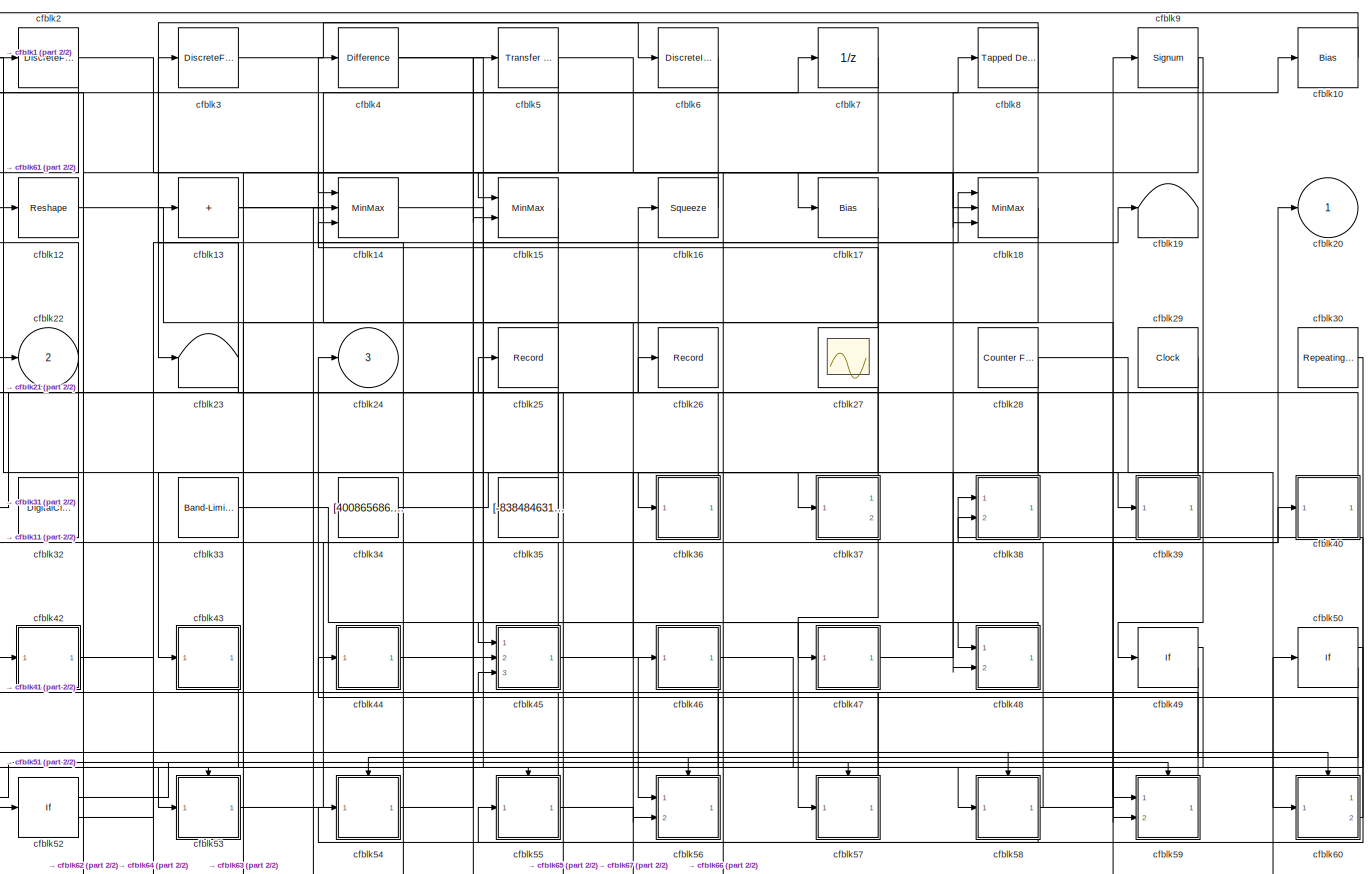
[diagram: root canvas - part 1/2, most of the canvas]
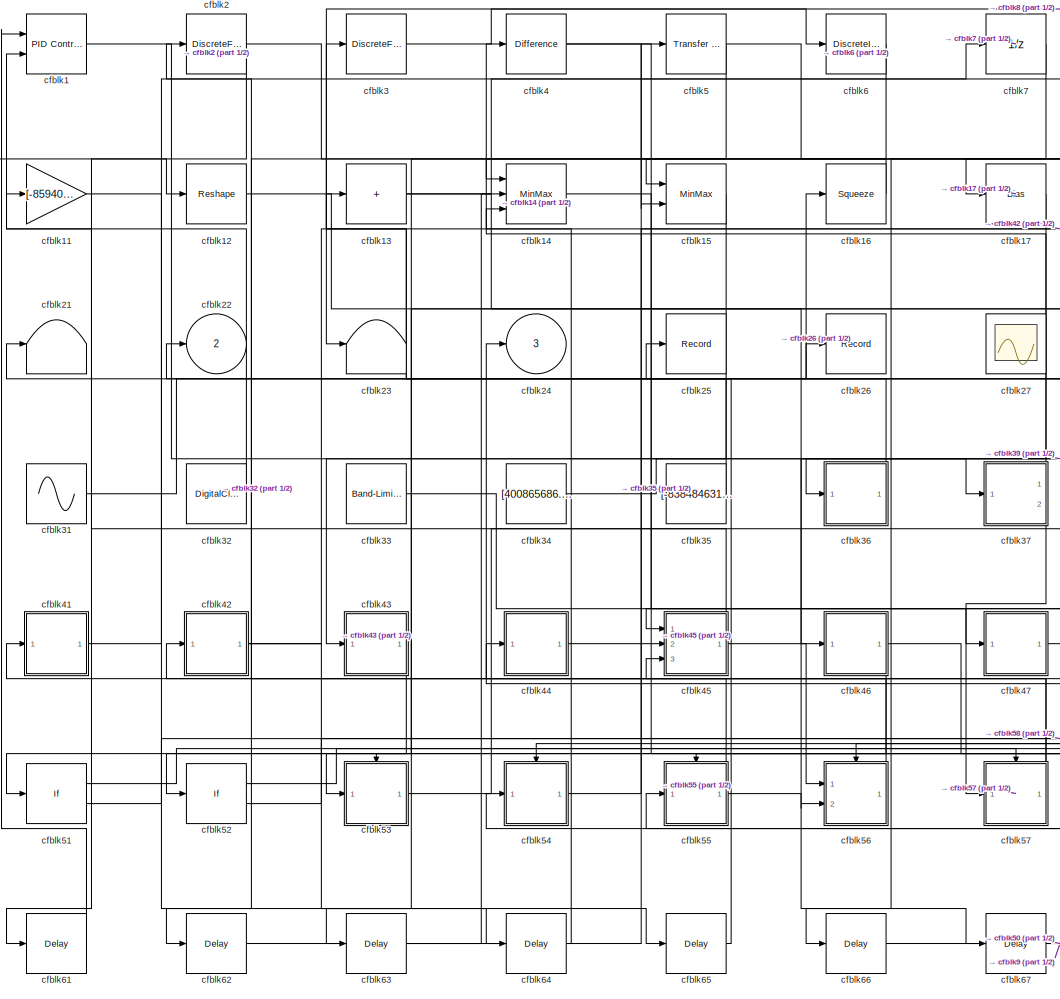
[diagram: root canvas - part 2/2, center side, full height]
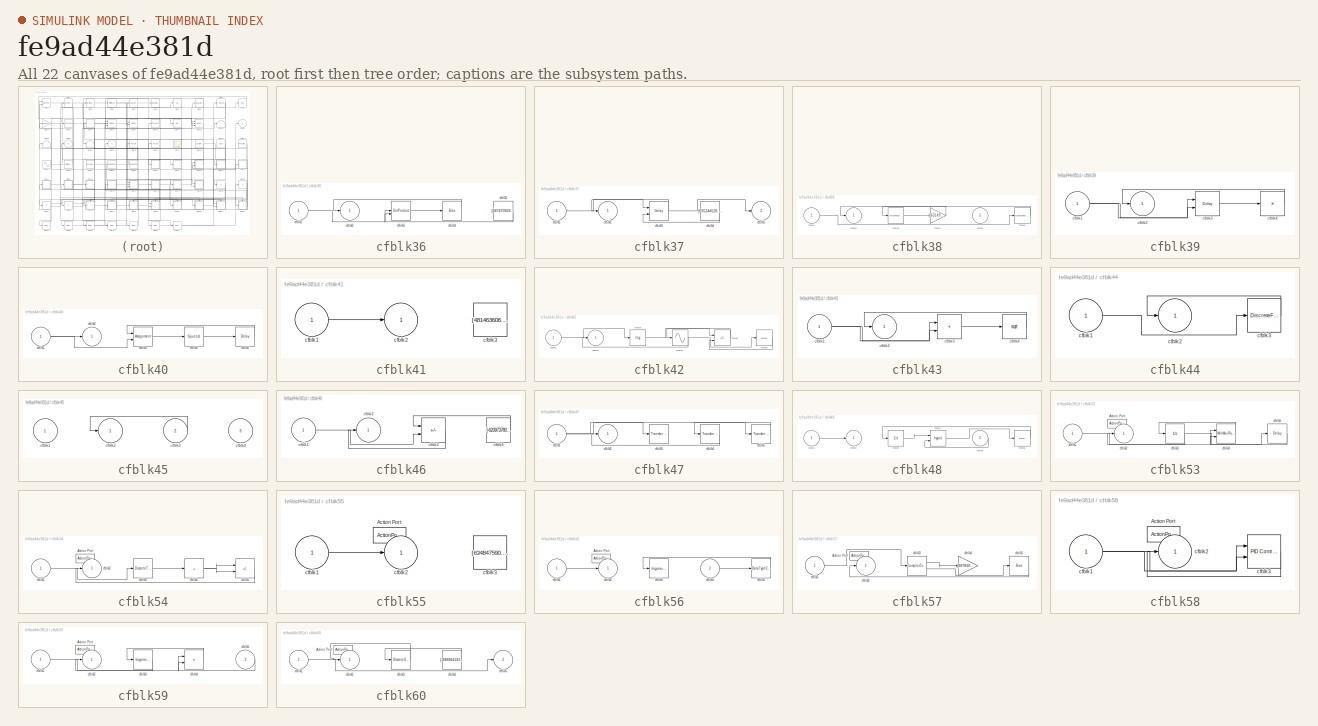
[diagram: thumbnail index - all 22 canvases of the model, root first then tree order]
MODEL slx_fe9ad44e381d
KIND model
CONFIG AbsTol = auto
CONFIG EnableMultiTasking = off
CONFIG FixedStep = auto
CONFIG MaxStep = auto
CONFIG MinStep = auto
CONFIG RelTol = 1e-3
CONFIG SampleTimeConstraint = Unconstrained
CONFIG SolverName = VariableStepAuto
CONFIG StartTime = 0.0
CONFIG StopTime = 10.0
BLOCK [Reference] cfblk1  REF=slpidlib/PID Controller (2DOF)
  Ports = [2, 1]
  SourceBlock = slpidlib/PID Controller (2DOF)
  SourceProductBaseCode = SL
  SourceType = PID 2dof
BLOCK [Bias] cfblk10
  Bias = [28283981.535764]
  SaturateOnIntegerOverflow = off
BLOCK [Gain] cfblk11
  Gain = [-859401278.077181]
BLOCK [Reshape] cfblk12
  Ports = [1, 1]
BLOCK [Sum] cfblk13
  IconShape = rectangular
  Inputs = +
  Ports = [1, 1]
BLOCK [MinMax] cfblk14
  Function = max
  Inputs = 3
  Ports = [3, 1]
BLOCK [MinMax] cfblk15
  Inputs = 2
  Ports = [2, 1]
BLOCK [Squeeze] cfblk16
BLOCK [Bias] cfblk17
  Bias = [55228400.673783]
  SaturateOnIntegerOverflow = off
BLOCK [MinMax] cfblk18
  Inputs = 3
  Ports = [3, 1]
BLOCK [Terminator] cfblk19
BLOCK [DiscreteFilter] cfblk2
  InputPortMap = u0
  Ports = [1, 1]
  SampleTime = 1
BLOCK [Outport] cfblk20
BLOCK [Terminator] cfblk21
BLOCK [Outport] cfblk22
  Port = 2
BLOCK [Terminator] cfblk23
BLOCK [Outport] cfblk24
  Port = 3
BLOCK [Record] cfblk25
  FileSettingsInternal = {"entries":[{"content":{"excelSettings":{"content":{},"type":"Streamout.ExcelSettings"}},"type":"Streamout.FileSettingStorage","uuid":"5d6700eb-b7dc-4e89-8cfd-a7cfabde85fd"}],"packageUris":["http://schema.mathworks.com/mf0/streamout_blocks/R2020a"],"version":"1.0"}
  Ports = [1]
  SignalsInternal = {"entries":[{"content":{"signals":[{"content":{"blockPath":["sampleModel168/cfblk25"],"channel":[],"dimensions":[1],"domain":"sampleModel168/cfblk25","lineColor":"#ff13a6","plots":[1],"port":1,"sid":[""],"signalID":6325,"signalName":"cfblk57"},"type":"RecordBlkView.Signal","uuid":"5bee3f64-e3fd-44b3-9e31-3812ad4f074b"}]},"type":"RecordBlkView.InputSignals","uuid":"565ec13a-f817-448c-bf93-5228326c9...<+97ch>
  VisualizationBindings = {"sparklinesplugin":{"info":[{"bindingParametersList":[],"subplotID":1}]}}
BLOCK [Record] cfblk26
  FileSettingsInternal = {"entries":[{"content":{"excelSettings":{"content":{},"type":"Streamout.ExcelSettings"}},"type":"Streamout.FileSettingStorage","uuid":"034f7d33-27da-4be1-a58b-e2f12ee0a9b7"}],"packageUris":["http://schema.mathworks.com/mf0/streamout_blocks/R2020a"],"version":"1.0"}
  Ports = [1]
  SignalsInternal = {"entries":[{"content":{"signals":[{"content":{"blockPath":["sampleModel168/cfblk26"],"channel":[],"dimensions":[1],"domain":"sampleModel168/cfblk26","lineColor":"#fe330a","plots":[1],"port":1,"sid":[""],"signalID":6329,"signalName":"cfblk31"},"type":"RecordBlkView.Signal","uuid":"832ba97a-a374-4f23-ac50-8a6ca30bdff1"}]},"type":"RecordBlkView.InputSignals","uuid":"b795735d-caf7-44f9-b6f9-1499413fe...<+97ch>
  VisualizationBindings = {"sparklinesplugin":{"info":[{"bindingParametersList":[],"subplotID":1}]}}
BLOCK [Scope] cfblk27
  Floating = on
  NumInputPorts = 1
  Ports = []
BLOCK [Reference] cfblk28  REF=simulink/Sources/Counter
Free-Running
  Ports = [0, 1]
  SourceBlock = simulink/Sources/Counter\nFree-Running
  SourceProductBaseCode = SL
  SourceType = Counter Free-Running
BLOCK [Clock] cfblk29
BLOCK [DiscreteFir] cfblk3
  InputPortMap = u0
  OutputPortMap = o0
  Ports = [1, 1]
  SampleTime = 1
BLOCK [Reference] cfblk30  REF=simulink/Sources/Repeating
Sequence
Interpolated
  Ports = [0, 1]
  SourceBlock = simulink/Sources/Repeating\nSequence\nInterpolated
  SourceProductBaseCode = SL
  SourceType = Repeating Sequence Interpolated
BLOCK [Sin] cfblk31
  Amplitude = [-188151696.405672]
  Bias = [-383980109.260124]
  Ports = [0, 1]
  SampleTime = 0
BLOCK [DigitalClock] cfblk32
BLOCK [Reference] cfblk33  REF=simulink/Sources/Band-Limited
White Noise
  Ports = [0, 1]
  SourceBlock = simulink/Sources/Band-Limited\nWhite Noise
  SourceProductBaseCode = SL
  SourceType = Band-Limited White Noise.
BLOCK [Constant] cfblk34
  SampleTime = 1
  Value = [400865686.655921]
BLOCK [Constant] cfblk35
  SampleTime = 1
  Value = [-838484631.348236]
BLOCK [SubSystem] cfblk36
  Ports = [1, 1]
  RequestExecContextInheritance = off
BLOCK [Inport] cfblk36/cfblk1
BLOCK [Outport] cfblk36/cfblk2
BLOCK [DotProduct] cfblk36/cfblk3
  OutDataTypeStr = Inherit: Inherit via internal rule
BLOCK [Bias] cfblk36/cfblk4
  Bias = [594957066.753553]
  SaturateOnIntegerOverflow = off
BLOCK [Constant] cfblk36/cfblk5
  SampleTime = 1
  Value = [587470929.840777]
BLOCK [SubSystem] cfblk37
  Ports = [1, 2]
  RequestExecContextInheritance = off
BLOCK [Inport] cfblk37/cfblk1
BLOCK [Outport] cfblk37/cfblk2
BLOCK [Delay] cfblk37/cfblk3
  DelayLengthSource = Input port
  InputPortMap = u0,p1
  Ports = [2, 1]
  SampleTime = 1
BLOCK [Constant] cfblk37/cfblk4
  SampleTime = 1
  Value = [635244528.614204]
BLOCK [Outport] cfblk37/cfblk5
  Port = 2
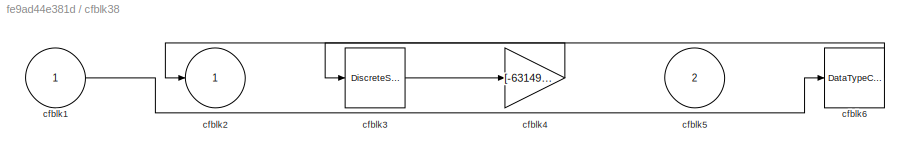
BLOCK [SubSystem] cfblk38
  Ports = [2, 1]
  RequestExecContextInheritance = off
BLOCK [Inport] cfblk38/cfblk1
BLOCK [Outport] cfblk38/cfblk2
BLOCK [DiscreteStateSpace] cfblk38/cfblk3
BLOCK [Gain] cfblk38/cfblk4
  Gain = [-631490085.048329]
BLOCK [Inport] cfblk38/cfblk5
  Port = 2
BLOCK [DataTypeConversion] cfblk38/cfblk6
  RndMeth = Floor
  SaturateOnIntegerOverflow = off
BLOCK [SubSystem] cfblk39
  Ports = [1, 1]
  RequestExecContextInheritance = off
BLOCK [Inport] cfblk39/cfblk1
BLOCK [Outport] cfblk39/cfblk2
BLOCK [Delay] cfblk39/cfblk3
  InputPortMap = u0,e6
  Ports = [2, 1]
  SampleTime = 1
  ShowEnablePort = on
BLOCK [Product] cfblk39/cfblk4
  Inputs = *
  Ports = [1, 1]
BLOCK [Reference] cfblk4  REF=simulink/Discrete/Difference
  Ports = [1, 1]
  SourceBlock = simulink/Discrete/Difference
  SourceProductBaseCode = SL
  SourceType = Difference
BLOCK [SubSystem] cfblk40
  Ports = [1, 1]
  RequestExecContextInheritance = off
BLOCK [Inport] cfblk40/cfblk1
BLOCK [Outport] cfblk40/cfblk2
BLOCK [Assignment] cfblk40/cfblk3
  DiagnosticForDimensions = Warning
  IndexOptions = Index vector (dialog)
  Indices = 1
  OutputSizes = 1
  Ports = [2, 1]
BLOCK [Squeeze] cfblk40/cfblk4
BLOCK [Delay] cfblk40/cfblk5
  InputPortMap = u0
  Ports = [1, 1]
  SampleTime = 1
BLOCK [SubSystem] cfblk41
  Ports = [1, 1]
  RequestExecContextInheritance = off
BLOCK [Inport] cfblk41/cfblk1
BLOCK [Outport] cfblk41/cfblk2
BLOCK [Constant] cfblk41/cfblk3
  SampleTime = 1
  Value = [481463606.367237]
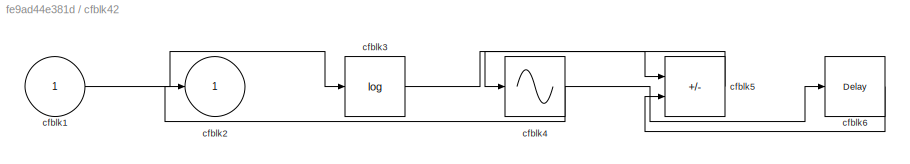
BLOCK [SubSystem] cfblk42
  Ports = [1, 1]
  RequestExecContextInheritance = off
BLOCK [Inport] cfblk42/cfblk1
BLOCK [Outport] cfblk42/cfblk2
BLOCK [Math] cfblk42/cfblk3
  Operator = log
  Ports = [1, 1]
BLOCK [Sin] cfblk42/cfblk4
  Ports = [1, 1]
  SampleTime = 0
  TimeSource = Use external signal
BLOCK [Sum] cfblk42/cfblk5
  IconShape = rectangular
  Inputs = +-
  Ports = [2, 1]
BLOCK [Delay] cfblk42/cfblk6
  InputPortMap = u0
  Ports = [1, 1]
  SampleTime = 1
BLOCK [SubSystem] cfblk43
  Ports = [1, 1]
  RequestExecContextInheritance = off
BLOCK [Inport] cfblk43/cfblk1
BLOCK [Outport] cfblk43/cfblk2
BLOCK [Sum] cfblk43/cfblk3
  IconShape = rectangular
  Ports = [2, 1]
BLOCK [Sqrt] cfblk43/cfblk4
BLOCK [SubSystem] cfblk44
  Ports = [1, 1]
  RequestExecContextInheritance = off
BLOCK [Inport] cfblk44/cfblk1
BLOCK [Outport] cfblk44/cfblk2
BLOCK [DiscreteFilter] cfblk44/cfblk3
  InputPortMap = u0
  Ports = [1, 1]
  SampleTime = 1
BLOCK [SubSystem] cfblk45
  Ports = [3, 1]
  RequestExecContextInheritance = off
BLOCK [Inport] cfblk45/cfblk1
BLOCK [Outport] cfblk45/cfblk2
BLOCK [Inport] cfblk45/cfblk3
  Port = 2
BLOCK [Inport] cfblk45/cfblk4
  Port = 3
BLOCK [SubSystem] cfblk46
  Ports = [1, 1]
  RequestExecContextInheritance = off
BLOCK [Inport] cfblk46/cfblk1
BLOCK [Outport] cfblk46/cfblk2
BLOCK [Sum] cfblk46/cfblk3
  IconShape = rectangular
  Inputs = +-
  Ports = [2, 1]
BLOCK [Constant] cfblk46/cfblk4
  SampleTime = 1
  Value = [-620973780.645703]
BLOCK [SubSystem] cfblk47
  Ports = [1, 1]
  RequestExecContextInheritance = off
BLOCK [Inport] cfblk47/cfblk1
BLOCK [Outport] cfblk47/cfblk2
BLOCK [Reference] cfblk47/cfblk3  REF=simulink/Discrete/Transfer Fcn
Real Zero
  Ports = [1, 1]
  SourceBlock = simulink/Discrete/Transfer Fcn\nReal Zero
  SourceProductBaseCode = SL
  SourceType = Transfer Fcn Real Zero
BLOCK [Reference] cfblk47/cfblk4  REF=simulink/Discrete/Transfer Fcn
Lead or Lag
  Ports = [1, 1]
  SourceBlock = simulink/Discrete/Transfer Fcn\nLead or Lag
  SourceProductBaseCode = SL
  SourceType = Lead or Lag Compensator
BLOCK [Reference] cfblk47/cfblk5  REF=simulink/Discrete/Transfer Fcn
First Order
  Ports = [1, 1]
  SourceBlock = simulink/Discrete/Transfer Fcn\nFirst Order
  SourceProductBaseCode = SL
  SourceType = First Order Transfer Fcn
BLOCK [SubSystem] cfblk48
  Ports = [2, 1]
  RequestExecContextInheritance = off
BLOCK [Inport] cfblk48/cfblk1
BLOCK [Outport] cfblk48/cfblk2
BLOCK [UnitDelay] cfblk48/cfblk3
  HasFrameUpgradeWarning = on
BLOCK [Math] cfblk48/cfblk4
  Operator = hypot
  Ports = [2, 1]
BLOCK [Inport] cfblk48/cfblk5
  Port = 2
BLOCK [Delay] cfblk48/cfblk6
  InputPortMap = u0
  Ports = [1, 1]
  SampleTime = 1
BLOCK [If] cfblk49
  IfExpression = u1 >= 0
  Ports = [1, 2]
  SampleTime = 1
BLOCK [Reference] cfblk5  REF=simulink/Discrete/Transfer Fcn
First Order
  Ports = [1, 1]
  SourceBlock = simulink/Discrete/Transfer Fcn\nFirst Order
  SourceProductBaseCode = SL
  SourceType = First Order Transfer Fcn
BLOCK [If] cfblk50
  IfExpression = u1 >= 0
  Ports = [1, 2]
  SampleTime = 1
BLOCK [If] cfblk51
  IfExpression = u1 >= 0
  Ports = [1, 2]
  SampleTime = 1
BLOCK [If] cfblk52
  IfExpression = u1 >= 0
  Ports = [1, 2]
  SampleTime = 1
BLOCK [SubSystem] cfblk53
  Ports = [1, 1, 0, 0, 0, 0, 0, 1]
  RequestExecContextInheritance = off
  TreatAsAtomicUnit = on
BLOCK [ActionPort] cfblk53/Action Port
  ActionPortLabel = if(u1 >= 0)
BLOCK [Inport] cfblk53/cfblk1
BLOCK [Outport] cfblk53/cfblk2
BLOCK [UnitDelay] cfblk53/cfblk3
  HasFrameUpgradeWarning = on
  SampleTime = -1
BLOCK [Reference] cfblk53/cfblk4  REF=simulink/Math
Operations/MinMax
Running
Resettable
  Ports = [2, 1]
  SourceBlock = simulink/Math\nOperations/MinMax\nRunning\nResettable
  SourceProductBaseCode = SL
  SourceType = MinMax Running Resettable
BLOCK [Delay] cfblk53/cfblk5
  InputPortMap = u0
  Ports = [1, 1]
BLOCK [SubSystem] cfblk54
  Ports = [1, 1, 0, 0, 0, 0, 0, 1]
  RequestExecContextInheritance = off
  TreatAsAtomicUnit = on
BLOCK [ActionPort] cfblk54/Action Port
  ActionPortLabel = else
BLOCK [Inport] cfblk54/cfblk1
BLOCK [Outport] cfblk54/cfblk2
BLOCK [DiscreteTransferFcn] cfblk54/cfblk3
  InputPortMap = u0
  Ports = [1, 1]
BLOCK [Sum] cfblk54/cfblk4
  IconShape = rectangular
  Inputs = +
  Ports = [1, 1]
BLOCK [Sum] cfblk54/cfblk5
  IconShape = rectangular
  Inputs = +-
  Ports = [2, 1]
BLOCK [SubSystem] cfblk55
  Ports = [1, 1, 0, 0, 0, 0, 0, 1]
  RequestExecContextInheritance = off
  TreatAsAtomicUnit = on
BLOCK [ActionPort] cfblk55/Action Port
  ActionPortLabel = if(u1 >= 0)
BLOCK [Inport] cfblk55/cfblk1
BLOCK [Outport] cfblk55/cfblk2
BLOCK [Constant] cfblk55/cfblk3
  SampleTime = 1
  Value = [634847590.051330]
BLOCK [SubSystem] cfblk56
  Ports = [2, 1, 0, 0, 0, 0, 0, 1]
  RequestExecContextInheritance = off
  TreatAsAtomicUnit = on
BLOCK [ActionPort] cfblk56/Action Port
  ActionPortLabel = else
BLOCK [Inport] cfblk56/cfblk1
BLOCK [Outport] cfblk56/cfblk2
BLOCK [Trigonometry] cfblk56/cfblk3
  Ports = [1, 1]
BLOCK [Inport] cfblk56/cfblk4
  Port = 2
BLOCK [DataTypeConversion] cfblk56/cfblk5
  RndMeth = Floor
  SaturateOnIntegerOverflow = off
BLOCK [SubSystem] cfblk57
  Ports = [1, 1, 0, 0, 0, 0, 0, 1]
  RequestExecContextInheritance = off
  TreatAsAtomicUnit = on
BLOCK [ActionPort] cfblk57/Action Port
  ActionPortLabel = if(u1 >= 0)
BLOCK [Inport] cfblk57/cfblk1
BLOCK [Outport] cfblk57/cfblk2
BLOCK [ComplexToMagnitudeAngle] cfblk57/cfblk3
  Ports = [1, 2]
BLOCK [Gain] cfblk57/cfblk4
  Gain = [997830737.769747]
BLOCK [Bias] cfblk57/cfblk5
  Bias = [213280168.203241]
  SaturateOnIntegerOverflow = off
BLOCK [SubSystem] cfblk58
  Ports = [1, 1, 0, 0, 0, 0, 0, 1]
  RequestExecContextInheritance = off
  TreatAsAtomicUnit = on
BLOCK [ActionPort] cfblk58/Action Port
  ActionPortLabel = else
BLOCK [Inport] cfblk58/cfblk1
BLOCK [Outport] cfblk58/cfblk2
BLOCK [Reference] cfblk58/cfblk3  REF=slpidlib/PID Controller (2DOF)
  Ports = [2, 1]
  SourceBlock = slpidlib/PID Controller (2DOF)
  SourceProductBaseCode = SL
  SourceType = PID 2dof
BLOCK [SubSystem] cfblk59
  Ports = [2, 1, 0, 0, 0, 0, 0, 1]
  RequestExecContextInheritance = off
  TreatAsAtomicUnit = on
BLOCK [ActionPort] cfblk59/Action Port
  ActionPortLabel = if(u1 >= 0)
BLOCK [Inport] cfblk59/cfblk1
BLOCK [Outport] cfblk59/cfblk2
BLOCK [Trigonometry] cfblk59/cfblk3
  Ports = [1, 1]
BLOCK [Product] cfblk59/cfblk4
  Ports = [2, 1]
BLOCK [Inport] cfblk59/cfblk5
  Port = 2
BLOCK [DiscreteIntegrator] cfblk6
  ICPrevOutput = DiscIntNeverNeededParam
  ICPrevScaledInput = DiscIntNeverNeededParam
  InitialConditionSetting = Auto
  Ports = [1, 1]
BLOCK [SubSystem] cfblk60
  Ports = [1, 2, 0, 0, 0, 0, 0, 1]
  RequestExecContextInheritance = off
  TreatAsAtomicUnit = on
BLOCK [ActionPort] cfblk60/Action Port
  ActionPortLabel = else
BLOCK [Inport] cfblk60/cfblk1
BLOCK [Outport] cfblk60/cfblk2
BLOCK [DiscreteStateSpace] cfblk60/cfblk3
  SampleTime = -1
BLOCK [Constant] cfblk60/cfblk4
  SampleTime = 1
  Value = [-898964191.921967]
BLOCK [Outport] cfblk60/cfblk5
  Port = 2
BLOCK [Delay] cfblk61
  InputPortMap = u0
  Ports = [1, 1]
  SampleTime = 1
BLOCK [Delay] cfblk62
  InputPortMap = u0
  Ports = [1, 1]
  SampleTime = 1
BLOCK [Delay] cfblk63
  InputPortMap = u0
  Ports = [1, 1]
  SampleTime = 1
BLOCK [Delay] cfblk64
  InputPortMap = u0
  Ports = [1, 1]
  SampleTime = 1
BLOCK [Delay] cfblk65
  InputPortMap = u0
  Ports = [1, 1]
  SampleTime = 1
BLOCK [Delay] cfblk66
  InputPortMap = u0
  Ports = [1, 1]
  SampleTime = 1
BLOCK [Delay] cfblk67
  InputPortMap = u0
  Ports = [1, 1]
  SampleTime = 1
BLOCK [UnitDelay] cfblk7
  HasFrameUpgradeWarning = on
BLOCK [Reference] cfblk8  REF=simulink/Discrete/Tapped Delay
  Ports = [1, 1]
  SourceBlock = simulink/Discrete/Tapped Delay
  SourceProductBaseCode = SL
  SourceType = Tapped Delay Line
BLOCK [Signum] cfblk9
LINE cfblk10:1 -> cfblk12:1
LINE cfblk11:1 -> cfblk65:1
LINE cfblk12:1 -> cfblk46:1
NET cfblk13:1 -> cfblk59:1, cfblk8:1
LINE cfblk14:1 -> cfblk48:1
LINE cfblk15:1 -> cfblk43:1
LINE cfblk16:1 -> cfblk14:1
LINE cfblk17:1 -> cfblk66:1
LINE cfblk18:1 -> cfblk53:1
LINE cfblk1:1 -> cfblk39:1
NET cfblk28:1 -> cfblk56:2, cfblk60:1
LINE cfblk29:1 -> cfblk48:2
NET cfblk2:1 -> cfblk15:2, cfblk61:1
LINE cfblk30:1 -> cfblk55:1
LINE cfblk31:1 -> cfblk26:1
LINE cfblk32:1 -> cfblk1:2
LINE cfblk33:1 -> cfblk57:1
LINE cfblk34:1 -> cfblk37:1
LINE cfblk35:1 -> cfblk21:1
LINE cfblk36/cfblk1:1 -> cfblk36/cfblk3:2
LINE cfblk36/cfblk3:1 -> cfblk36/cfblk4:1
LINE cfblk36/cfblk4:1 -> cfblk36/cfblk2:1
LINE cfblk36/cfblk5:1 -> cfblk36/cfblk3:1
LINE cfblk36:1 -> cfblk22:1
LINE cfblk37/cfblk1:1 -> cfblk37/cfblk3:1
NET cfblk37/cfblk3:1 -> cfblk37/cfblk2:1, cfblk37/cfblk5:1
LINE cfblk37/cfblk4:1 -> cfblk37/cfblk3:2
LINE cfblk37:1 -> cfblk4:1
LINE cfblk37:2 -> cfblk47:1
LINE cfblk38/cfblk1:1 -> cfblk38/cfblk6:1
LINE cfblk38/cfblk3:1 -> cfblk38/cfblk4:1
LINE cfblk38/cfblk4:1 -> cfblk38/cfblk2:1
LINE cfblk38/cfblk6:1 -> cfblk38/cfblk3:1
LINE cfblk38:1 -> cfblk3:1
NET cfblk39/cfblk1:1 -> cfblk39/cfblk3:1, cfblk39/cfblk3:2
LINE cfblk39/cfblk3:1 -> cfblk39/cfblk4:1
LINE cfblk39/cfblk4:1 -> cfblk39/cfblk2:1
LINE cfblk39:1 -> cfblk16:1
LINE cfblk3:1 -> cfblk6:1
NET cfblk40/cfblk1:1 -> cfblk40/cfblk2:1, cfblk40/cfblk3:2
LINE cfblk40/cfblk3:1 -> cfblk40/cfblk4:1
LINE cfblk40/cfblk4:1 -> cfblk40/cfblk5:1
LINE cfblk40/cfblk5:1 -> cfblk40/cfblk3:1
LINE cfblk40:1 -> cfblk13:1
LINE cfblk41/cfblk1:1 -> cfblk41/cfblk2:1
LINE cfblk41:1 -> cfblk7:1
LINE cfblk42/cfblk1:1 -> cfblk42/cfblk3:1
LINE cfblk42/cfblk3:1 -> cfblk42/cfblk5:1
NET cfblk42/cfblk4:1 -> cfblk42/cfblk2:1, cfblk42/cfblk6:1
LINE cfblk42/cfblk5:1 -> cfblk42/cfblk4:1
LINE cfblk42/cfblk6:1 -> cfblk42/cfblk5:2
NET cfblk42:1 -> cfblk18:1, cfblk64:1
NET cfblk43/cfblk1:1 -> cfblk43/cfblk3:1, cfblk43/cfblk3:2
LINE cfblk43/cfblk3:1 -> cfblk43/cfblk4:1
LINE cfblk43/cfblk4:1 -> cfblk43/cfblk2:1
LINE cfblk43:1 -> cfblk51:1
LINE cfblk44/cfblk1:1 -> cfblk44/cfblk3:1
LINE cfblk44/cfblk3:1 -> cfblk44/cfblk2:1
LINE cfblk44:1 -> cfblk5:1
LINE cfblk45/cfblk3:1 -> cfblk45/cfblk2:1
NET cfblk45:1 -> cfblk11:1, cfblk56:1
LINE cfblk46/cfblk1:1 -> cfblk46/cfblk3:2
LINE cfblk46/cfblk3:1 -> cfblk46/cfblk2:1
LINE cfblk46/cfblk4:1 -> cfblk46/cfblk3:1
NET cfblk46:1 -> cfblk52:1, cfblk59:2
NET cfblk47/cfblk1:1 -> cfblk47/cfblk3:1, cfblk47/cfblk5:1
LINE cfblk47/cfblk4:1 -> cfblk47/cfblk2:1
LINE cfblk47/cfblk5:1 -> cfblk47/cfblk4:1
LINE cfblk47:1 -> cfblk10:1
LINE cfblk48/cfblk1:1 -> cfblk48/cfblk2:1
LINE cfblk48/cfblk3:1 -> cfblk48/cfblk4:1
LINE cfblk48/cfblk4:1 -> cfblk48/cfblk6:1
LINE cfblk48/cfblk5:1 -> cfblk48/cfblk4:2
LINE cfblk48/cfblk6:1 -> cfblk48/cfblk3:1
LINE cfblk48:1 -> cfblk45:1
LINE cfblk49:1 -> cfblk53:ifaction
LINE cfblk49:2 -> cfblk54:ifaction
NET cfblk4:1 -> cfblk18:3, cfblk58:1
LINE cfblk50:1 -> cfblk55:ifaction
LINE cfblk50:2 -> cfblk56:ifaction
LINE cfblk51:1 -> cfblk57:ifaction
LINE cfblk51:2 -> cfblk58:ifaction
LINE cfblk52:1 -> cfblk59:ifaction
LINE cfblk52:2 -> cfblk60:ifaction
LINE cfblk53/cfblk1:1 -> cfblk53/cfblk4:1
NET cfblk53/cfblk3:1 -> cfblk53/cfblk2:1, cfblk53/cfblk5:1
LINE cfblk53/cfblk4:1 -> cfblk53/cfblk3:1
LINE cfblk53/cfblk5:1 -> cfblk53/cfblk4:2
LINE cfblk53:1 -> cfblk20:1
LINE cfblk54/cfblk1:1 -> cfblk54/cfblk3:1
LINE cfblk54/cfblk3:1 -> cfblk54/cfblk4:1
NET cfblk54/cfblk4:1 -> cfblk54/cfblk5:1, cfblk54/cfblk5:2
LINE cfblk54/cfblk5:1 -> cfblk54/cfblk2:1
LINE cfblk54:1 -> cfblk19:1
LINE cfblk55/cfblk1:1 -> cfblk55/cfblk2:1
NET cfblk55:1 -> cfblk44:1, cfblk67:1
LINE cfblk56/cfblk1:1 -> cfblk56/cfblk2:1
LINE cfblk56/cfblk4:1 -> cfblk56/cfblk5:1
LINE cfblk56/cfblk5:1 -> cfblk56/cfblk3:1
LINE cfblk56:1 -> cfblk2:1
LINE cfblk57/cfblk1:1 -> cfblk57/cfblk3:1
LINE cfblk57/cfblk3:1 -> cfblk57/cfblk4:1
LINE cfblk57/cfblk3:2 -> cfblk57/cfblk5:1
LINE cfblk57/cfblk5:1 -> cfblk57/cfblk2:1
NET cfblk57:1 -> cfblk25:1, cfblk41:1
NET cfblk58/cfblk1:1 -> cfblk58/cfblk3:1, cfblk58/cfblk3:2
LINE cfblk58/cfblk3:1 -> cfblk58/cfblk2:1
NET cfblk58:1 -> cfblk38:2, cfblk40:1, cfblk54:1
LINE cfblk59/cfblk1:1 -> cfblk59/cfblk4:1
LINE cfblk59/cfblk3:1 -> cfblk59/cfblk2:1
LINE cfblk59/cfblk4:1 -> cfblk59/cfblk3:1
LINE cfblk59/cfblk5:1 -> cfblk59/cfblk4:2
LINE cfblk59:1 -> cfblk42:1
NET cfblk5:1 -> cfblk15:1, cfblk18:2
LINE cfblk60/cfblk1:1 -> cfblk60/cfblk5:1
LINE cfblk60/cfblk3:1 -> cfblk60/cfblk2:1
LINE cfblk60/cfblk4:1 -> cfblk60/cfblk3:1
LINE cfblk60:1 -> cfblk24:1
LINE cfblk60:2 -> cfblk38:1
LINE cfblk61:1 -> cfblk1:1
LINE cfblk62:1 -> cfblk45:2
LINE cfblk63:1 -> cfblk14:2
LINE cfblk64:1 -> cfblk14:3
LINE cfblk65:1 -> cfblk45:3
LINE cfblk66:1 -> cfblk9:1
LINE cfblk67:1 -> cfblk50:1
LINE cfblk6:1 -> cfblk62:1
LINE cfblk7:1 -> cfblk36:1
NET cfblk8:1 -> cfblk23:1, cfblk63:1
NET cfblk9:1 -> cfblk17:1, cfblk49:1
note: NET lines group one-source signal fan-out (src -> all destinations, sorted); 1:1 wires keep LINE
